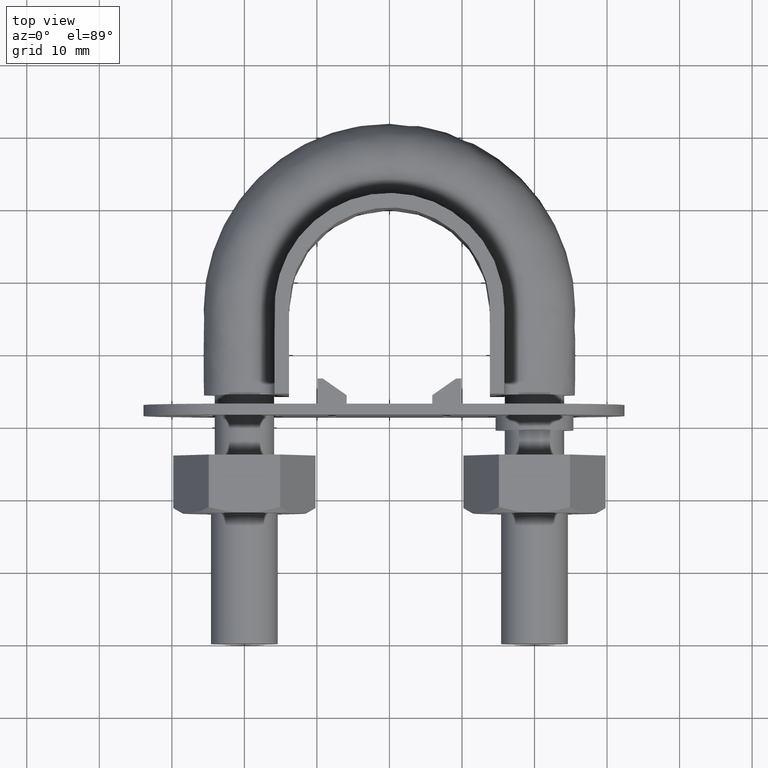
[diagram: clean part render]
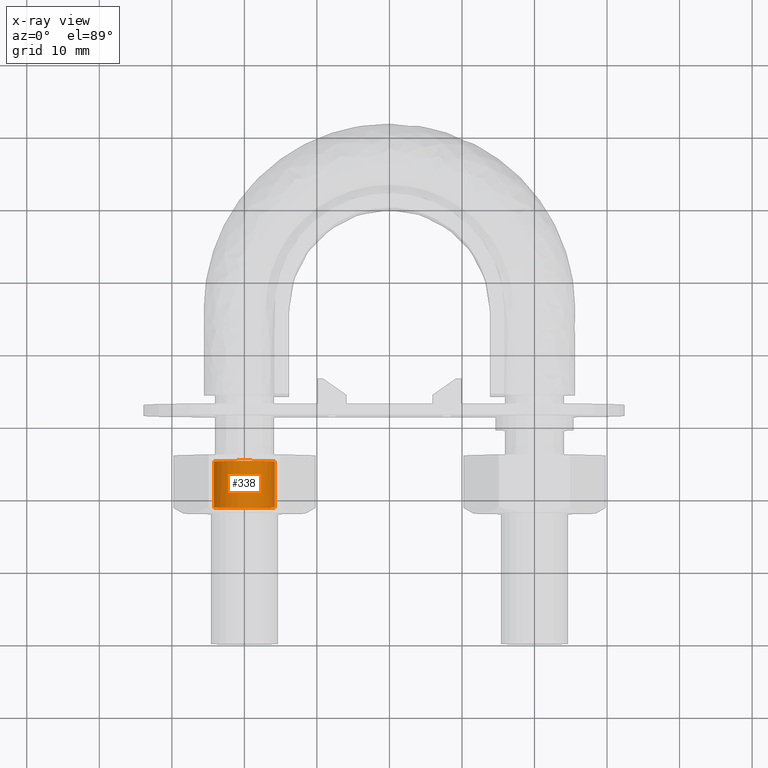
[diagram: x-ray — body ghosted, one internal face saturated and labeled with its STEP entity id]
A machine part, top view, then the same camera in x-ray: the body is ghosted and one INTERNAL B-rep face — a face not visible from any outside direction — is saturated and labeled: STEP entity #338.
In plain terms, the highlighted cylindrical surface (bore or boss wall) has radius 4.188 mm, axis along (0, 1, 0).
Its self-contained STEP definition (entity closure, byte-faithful):
#338 = ADVANCED_FACE( '', ( #531, #532 ), #533, .F. );
#531 = FACE_OUTER_BOUND( '', #1634, .T. );
#532 = FACE_OUTER_BOUND( '', #1635, .T. );
#533 = CYLINDRICAL_SURFACE( '', #1636, 4.18800000000000 );
#1634 = EDGE_LOOP( '', ( #2232 ) );
#1635 = EDGE_LOOP( '', ( #2233 ) );
#1636 = AXIS2_PLACEMENT_3D( '', #2234, #2235, #2236 );
#2232 = ORIENTED_EDGE( '', *, *, #2578, .F. );
#2233 = ORIENTED_EDGE( '', *, *, #2546, .T. );
#2234 = CARTESIAN_POINT( '', ( -20.0000000000000, 26.0000000000000, 1.59198825996909E-015 ) );
#2235 = DIRECTION( '', ( 4.89842541528951E-016, 1.00000000000000, 6.12303176911188E-017 ) );
#2236 = DIRECTION( '', ( -2.31648034088039E-013, 6.12303176912323E-017, -1.00000000000000 ) );
#2546 = EDGE_CURVE( '', #2845, #2845, #2846, .T. );
#2578 = EDGE_CURVE( '', #2893, #2893, #2894, .F. );
#2845 = VERTEX_POINT( '', #3484 );
#2846 = CIRCLE( '', #3485, 4.18800000000000 );
#2893 = VERTEX_POINT( '', #3579 );
#2894 = CIRCLE( '', #3580, 4.18800000000000 );
#3484 = CARTESIAN_POINT( '', ( -24.1880000000000, 25.1880000000002, 1.54226924200392E-015 ) );
#3485 = AXIS2_PLACEMENT_3D( '', #3899, #3900, #3901 );
#3579 = CARTESIAN_POINT( '', ( -15.8120000000000, 18.8120000000023, 1.15186473640547E-015 ) );
#3580 = AXIS2_PLACEMENT_3D( '', #3950, #3951, #3952 );
#3899 = CARTESIAN_POINT( '', ( -20.0000000000000, 25.1880000000002, 1.54226924200392E-015 ) );
#3900 = DIRECTION( '', ( 4.89842541528951E-016, 1.00000000000000, 6.12303176911188E-017 ) );
#3901 = DIRECTION( '', ( -1.00000000000000, 4.89842541528951E-016, 0.000000000000000 ) );
#3950 = CARTESIAN_POINT( '', ( -20.0000000000000, 18.8120000000023, 1.15186473640547E-015 ) );
#3951 = DIRECTION( '', ( -4.89842541528951E-016, -1.00000000000000, -6.12303176911188E-017 ) );
#3952 = DIRECTION( '', ( 1.00000000000000, -4.89842541528951E-016, 0.000000000000000 ) );